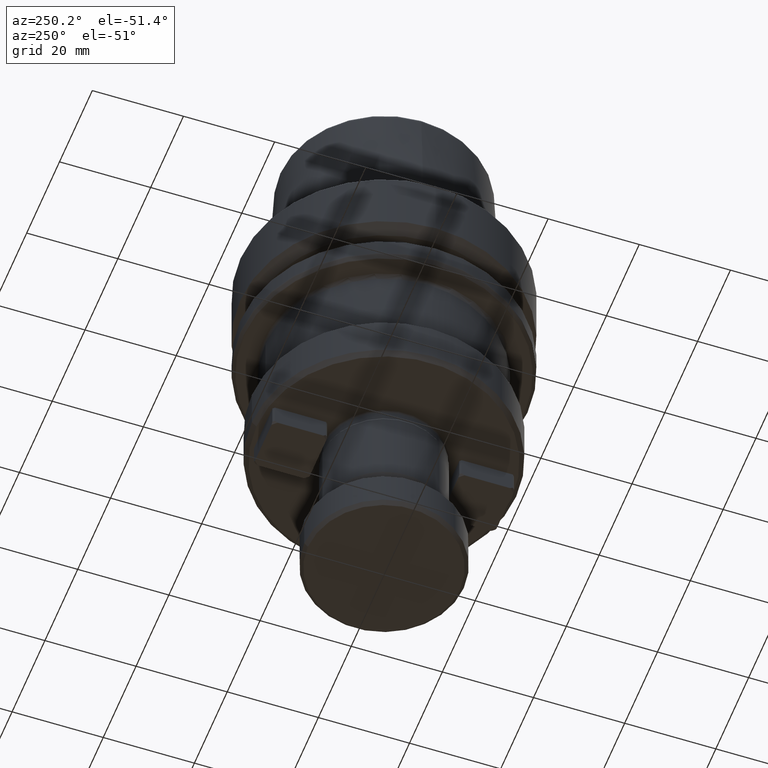
[diagram: clean part render]
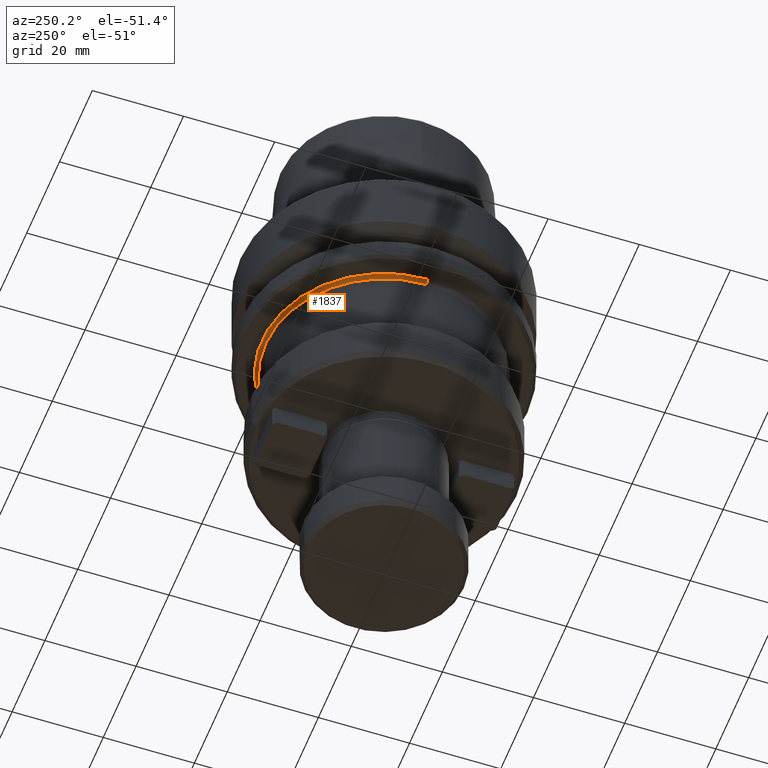
[diagram: same view with one face highlighted and labeled with its STEP entity id]
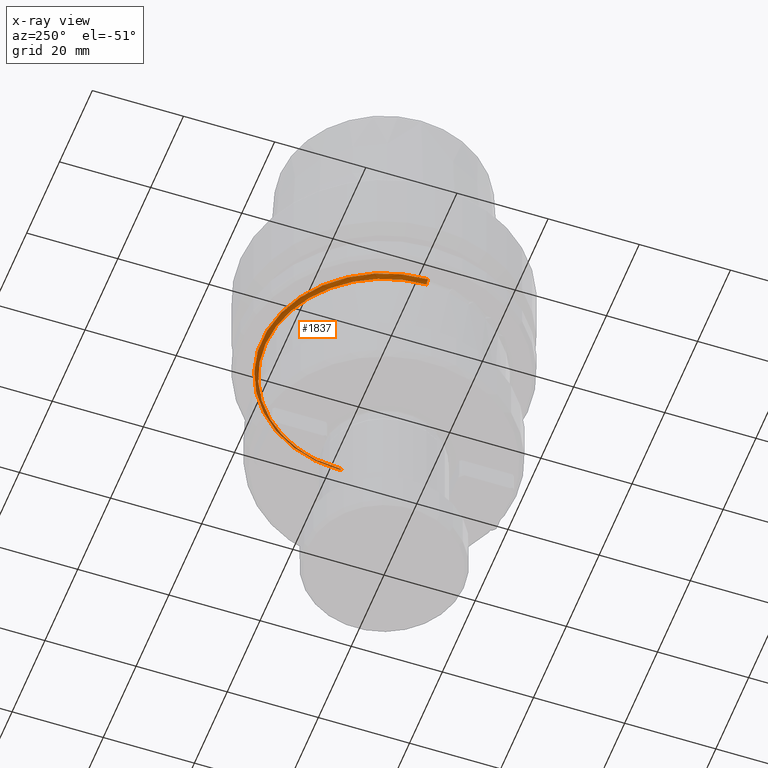
[diagram: x-ray of the same camera — body ghosted, the highlighted face saturated]
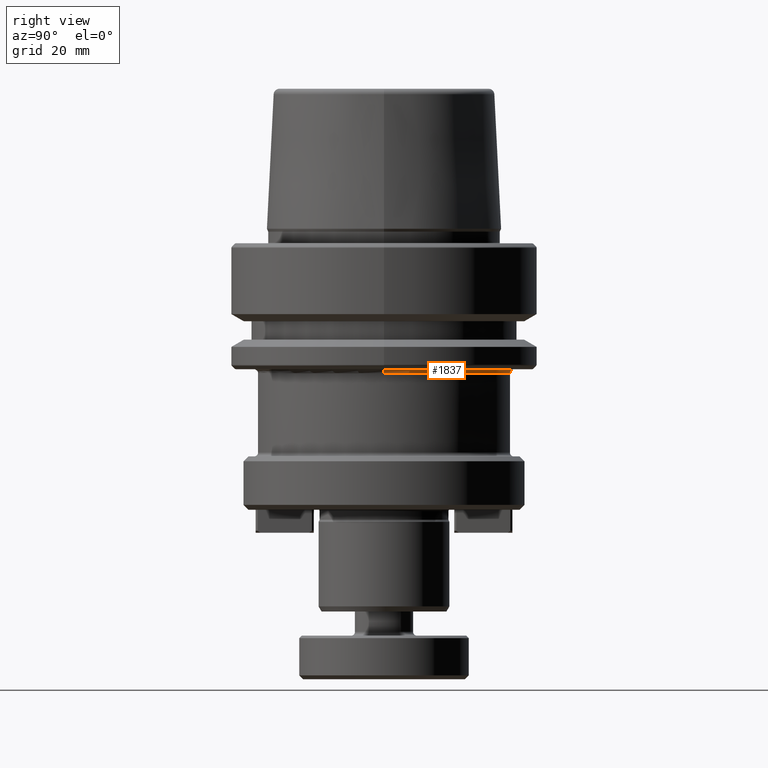
[diagram: same view with one face highlighted and labeled with its STEP entity id]
A machine part, auxiliary view. The second image highlights one B-rep face of the part: STEP entity #1837.
The next image is the same camera in x-ray: the body ghosted, the highlighted face saturated — about 17% of this face is hidden behind the body in this view.
A second angle (right view) of the same face is appended — the face is thin or edge-on in the first view.
In plain terms, the highlighted toroidal blend (fillet) surface has major radius 26.8 mm and minor (blend) radius 0.8 mm.
Its self-contained STEP definition (entity closure, byte-faithful):
#35 = CIRCLE ( 'NONE', #228, 0.7999999999999986000 ) ;
#156 = CARTESIAN_POINT ( 'NONE',  ( 0.0000000000000000000, 26.00000000000000000, -26.80000000000000400 ) ) ;
#188 = CARTESIAN_POINT ( 'NONE',  ( 26.79999999999999700, 3.918869757271509300E-018, -26.80000000000000400 ) ) ;
#228 = AXIS2_PLACEMENT_3D ( 'NONE', #188, #1815, #418 ) ;
#235 = TOROIDAL_SURFACE ( 'NONE', #246, 26.79999999999999700, 0.8000000000000000400 ) ;
#246 = AXIS2_PLACEMENT_3D ( 'NONE', #788, #2873, #1490 ) ;
#282 = EDGE_LOOP ( 'NONE', ( #2561, #2918, #417, #2947, #671 ) ) ;
#417 = ORIENTED_EDGE ( 'NONE', *, *, #2675, .T. ) ;
#418 = DIRECTION ( 'NONE',  ( 0.0000000000000000000, 0.0000000000000000000, -1.000000000000000000 ) ) ;
#531 = AXIS2_PLACEMENT_3D ( 'NONE', #986, #2140, #533 ) ;
#533 = DIRECTION ( 'NONE',  ( 1.000000000000000000, 0.0000000000000000000, 0.0000000000000000000 ) ) ;
#560 = VERTEX_POINT ( 'NONE', #2362 ) ;
#575 = CARTESIAN_POINT ( 'NONE',  ( 26.79999999999999700, 3.918869757271509300E-018, -26.00000000000000700 ) ) ;
#671 = ORIENTED_EDGE ( 'NONE', *, *, #772, .F. ) ;
#772 = EDGE_CURVE ( 'NONE', #560, #2528, #2681, .T. ) ;
#782 = CARTESIAN_POINT ( 'NONE',  ( -26.79999999999999700, 3.285972291472177800E-015, -26.80000000000000400 ) ) ;
#788 = CARTESIAN_POINT ( 'NONE',  ( 0.0000000000000000000, 3.918869757271509300E-018, -26.80000000000000400 ) ) ;
#808 = DIRECTION ( 'NONE',  ( -0.0000000000000000000, -0.0000000000000000000, 1.000000000000000000 ) ) ;
#986 = CARTESIAN_POINT ( 'NONE',  ( 0.0000000000000000000, 3.918869757271509300E-018, -26.80000000000000400 ) ) ;
#1013 = DIRECTION ( 'NONE',  ( -1.000000000000000000, 1.224646799147353500E-016, 0.0000000000000000000 ) ) ;
#1018 = AXIS2_PLACEMENT_3D ( 'NONE', #2205, #808, #2448 ) ;
#1114 = AXIS2_PLACEMENT_3D ( 'NONE', #2764, #1380, #2996 ) ;
#1229 = CARTESIAN_POINT ( 'NONE',  ( -26.79999999999999700, 3.285972291472177800E-015, -26.00000000000000700 ) ) ;
#1380 = DIRECTION ( 'NONE',  ( 0.0000000000000000000, 0.0000000000000000000, -1.000000000000000000 ) ) ;
#1397 = FACE_OUTER_BOUND ( 'NONE', #282, .T. ) ;
#1490 = DIRECTION ( 'NONE',  ( 1.000000000000000000, 0.0000000000000000000, 0.0000000000000000000 ) ) ;
#1602 = VERTEX_POINT ( 'NONE', #1632 ) ;
#1632 = CARTESIAN_POINT ( 'NONE',  ( 26.00000000000000000, 3.918869757271509300E-018, -26.80000000000000400 ) ) ;
#1815 = DIRECTION ( 'NONE',  ( 0.0000000000000000000, -1.000000000000000000, 0.0000000000000000000 ) ) ;
#1826 = CIRCLE ( 'NONE', #1114, 26.00000000000000000 ) ;
#1837 = ADVANCED_FACE ( 'NONE', ( #1397 ), #235, .F. ) ;
#1908 = EDGE_CURVE ( 'NONE', #1948, #2984, #2573, .T. ) ;
#1948 = VERTEX_POINT ( 'NONE', #575 ) ;
#2140 = DIRECTION ( 'NONE',  ( 0.0000000000000000000, 0.0000000000000000000, -1.000000000000000000 ) ) ;
#2148 = CIRCLE ( 'NONE', #2676, 0.7999999999999986000 ) ;
#2205 = CARTESIAN_POINT ( 'NONE',  ( 0.0000000000000000000, 3.918869757271509300E-018, -26.00000000000000700 ) ) ;
#2219 = EDGE_CURVE ( 'NONE', #2528, #1602, #1826, .T. ) ;
#2342 = EDGE_CURVE ( 'NONE', #2984, #560, #2148, .T. ) ;
#2362 = CARTESIAN_POINT ( 'NONE',  ( -26.00000000000000000, 3.236986419506283500E-015, -26.80000000000000400 ) ) ;
#2414 = DIRECTION ( 'NONE',  ( 1.224646799147353200E-016, 1.000000000000000000, 0.0000000000000000000 ) ) ;
#2448 = DIRECTION ( 'NONE',  ( 1.000000000000000000, 0.0000000000000000000, 0.0000000000000000000 ) ) ;
#2528 = VERTEX_POINT ( 'NONE', #156 ) ;
#2561 = ORIENTED_EDGE ( 'NONE', *, *, #2342, .F. ) ;
#2573 = CIRCLE ( 'NONE', #1018, 26.79999999999999700 ) ;
#2675 = EDGE_CURVE ( 'NONE', #1948, #1602, #35, .T. ) ;
#2676 = AXIS2_PLACEMENT_3D ( 'NONE', #782, #2414, #1013 ) ;
#2681 = CIRCLE ( 'NONE', #531, 26.00000000000000000 ) ;
#2764 = CARTESIAN_POINT ( 'NONE',  ( 0.0000000000000000000, 3.918869757271509300E-018, -26.80000000000000400 ) ) ;
#2873 = DIRECTION ( 'NONE',  ( -0.0000000000000000000, -0.0000000000000000000, 1.000000000000000000 ) ) ;
#2918 = ORIENTED_EDGE ( 'NONE', *, *, #1908, .F. ) ;
#2947 = ORIENTED_EDGE ( 'NONE', *, *, #2219, .F. ) ;
#2984 = VERTEX_POINT ( 'NONE', #1229 ) ;
#2996 = DIRECTION ( 'NONE',  ( 1.000000000000000000, 0.0000000000000000000, 0.0000000000000000000 ) ) ;